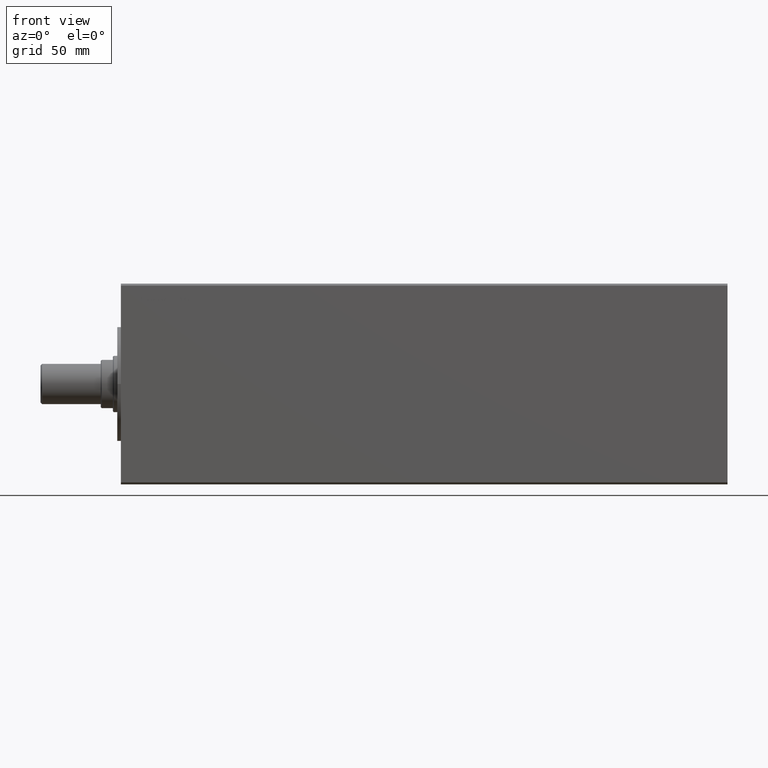
[diagram: clean part render]
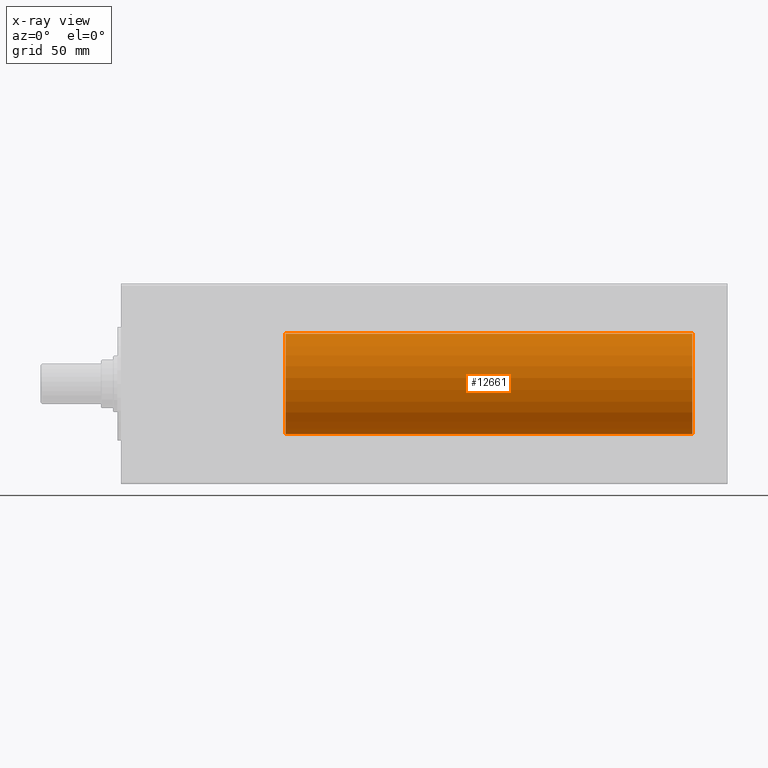
[diagram: x-ray — body ghosted, one internal face saturated and labeled with its STEP entity id]
A machine part, front view, then the same camera in x-ray: the body is ghosted and one INTERNAL B-rep face — a face not visible from any outside direction — is saturated and labeled: STEP entity #12661.
In plain terms, the highlighted cylindrical surface (partial cylindrical patch) has radius 25 mm, axis along (-1, -0, -0).
Its self-contained STEP definition (entity closure, byte-faithful):
#261 = AXIS2_PLACEMENT_3D ( 'NONE', #21986, #18842, #12556 ) ;
#1463 = CYLINDRICAL_SURFACE ( 'NONE', #10072, 25.00000000000000000 ) ;
#1678 = CIRCLE ( 'NONE', #261, 25.00000000000000000 ) ;
#2727 = CARTESIAN_POINT ( 'NONE',  ( 284.5000000000000000, 0.000000000000000000, 25.00000000000000000 ) ) ;
#3395 = DIRECTION ( 'NONE',  ( 0.000000000000000000, 0.000000000000000000, 1.000000000000000000 ) ) ;
#4405 = EDGE_CURVE ( 'NONE', #9438, #20052, #9428, .T. ) ;
#4463 = ORIENTED_EDGE ( 'NONE', *, *, #4405, .F. ) ;
#4819 = CARTESIAN_POINT ( 'NONE',  ( 284.5000000000000000, 0.000000000000000000, 0.000000000000000000 ) ) ;
#5684 = VECTOR ( 'NONE', #16361, 1000.000000000000000 ) ;
#6516 = DIRECTION ( 'NONE',  ( -1.000000000000000000, 0.000000000000000000, 0.000000000000000000 ) ) ;
#7946 = DIRECTION ( 'NONE',  ( 0.000000000000000000, 0.000000000000000000, 1.000000000000000000 ) ) ;
#7967 = CARTESIAN_POINT ( 'NONE',  ( 82.00000000000001421, 3.061616997868383043E-15, -25.00000000000000000 ) ) ;
#8211 = AXIS2_PLACEMENT_3D ( 'NONE', #40808, #6516, #3395 ) ;
#8919 = CIRCLE ( 'NONE', #8211, 25.00000000000000000 ) ;
#8979 = ORIENTED_EDGE ( 'NONE', *, *, #20274, .T. ) ;
#9428 = LINE ( 'NONE', #2727, #5684 ) ;
#9438 = VERTEX_POINT ( 'NONE', #23426 ) ;
#10072 = AXIS2_PLACEMENT_3D ( 'NONE', #4819, #25419, #7946 ) ;
#12556 = DIRECTION ( 'NONE',  ( 0.000000000000000000, 0.000000000000000000, 1.000000000000000000 ) ) ;
#12661 = ADVANCED_FACE ( 'NONE', ( #18250 ), #1463, .F. ) ;
#14638 = LINE ( 'NONE', #38413, #42616 ) ;
#16361 = DIRECTION ( 'NONE',  ( -1.000000000000000000, -0.000000000000000000, -0.000000000000000000 ) ) ;
#16566 = EDGE_LOOP ( 'NONE', ( #34396, #44253, #8979, #4463 ) ) ;
#16946 = VERTEX_POINT ( 'NONE', #7967 ) ;
#18250 = FACE_OUTER_BOUND ( 'NONE', #16566, .T. ) ;
#18842 = DIRECTION ( 'NONE',  ( -1.000000000000000000, 0.000000000000000000, 0.000000000000000000 ) ) ;
#20052 = VERTEX_POINT ( 'NONE', #33885 ) ;
#20274 = EDGE_CURVE ( 'NONE', #16946, #20052, #1678, .T. ) ;
#21986 = CARTESIAN_POINT ( 'NONE',  ( 82.00000000000001421, 0.000000000000000000, 0.000000000000000000 ) ) ;
#23426 = CARTESIAN_POINT ( 'NONE',  ( 284.5000000000000000, 0.000000000000000000, 25.00000000000000000 ) ) ;
#24055 = EDGE_CURVE ( 'NONE', #33559, #9438, #8919, .T. ) ;
#25419 = DIRECTION ( 'NONE',  ( -1.000000000000000000, -0.000000000000000000, -0.000000000000000000 ) ) ;
#25678 = EDGE_CURVE ( 'NONE', #33559, #16946, #14638, .T. ) ;
#33559 = VERTEX_POINT ( 'NONE', #38851 ) ;
#33885 = CARTESIAN_POINT ( 'NONE',  ( 82.00000000000001421, 0.000000000000000000, 25.00000000000000000 ) ) ;
#34396 = ORIENTED_EDGE ( 'NONE', *, *, #24055, .F. ) ;
#34834 = DIRECTION ( 'NONE',  ( -1.000000000000000000, -0.000000000000000000, -0.000000000000000000 ) ) ;
#38413 = CARTESIAN_POINT ( 'NONE',  ( 284.5000000000000000, 3.061616997868383043E-15, -25.00000000000000000 ) ) ;
#38851 = CARTESIAN_POINT ( 'NONE',  ( 284.5000000000000000, 3.061616997868383043E-15, -25.00000000000000000 ) ) ;
#40808 = CARTESIAN_POINT ( 'NONE',  ( 284.5000000000000000, 0.000000000000000000, 0.000000000000000000 ) ) ;
#42616 = VECTOR ( 'NONE', #34834, 1000.000000000000000 ) ;
#44253 = ORIENTED_EDGE ( 'NONE', *, *, #25678, .T. ) ;